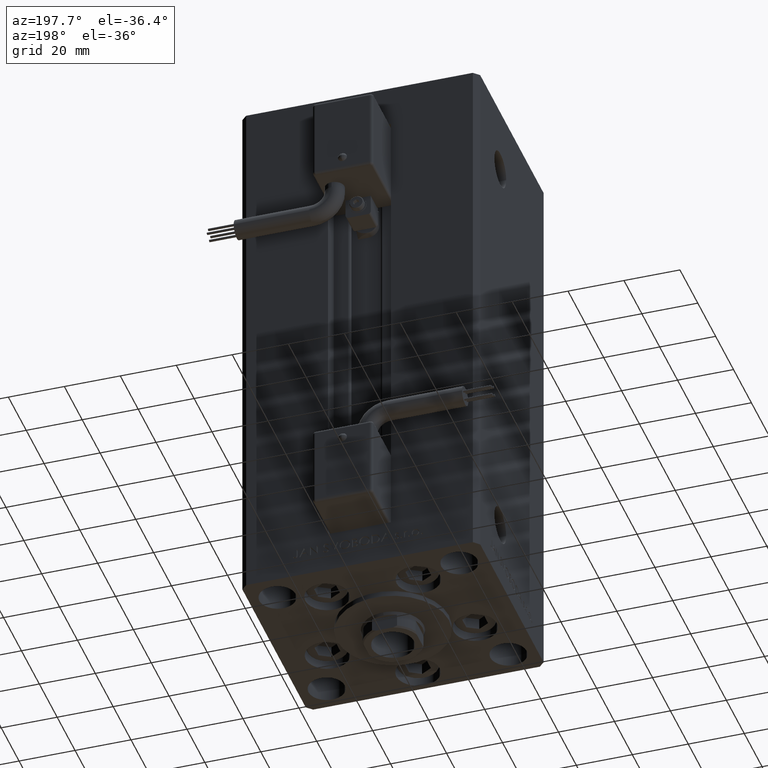
[diagram: clean part render]
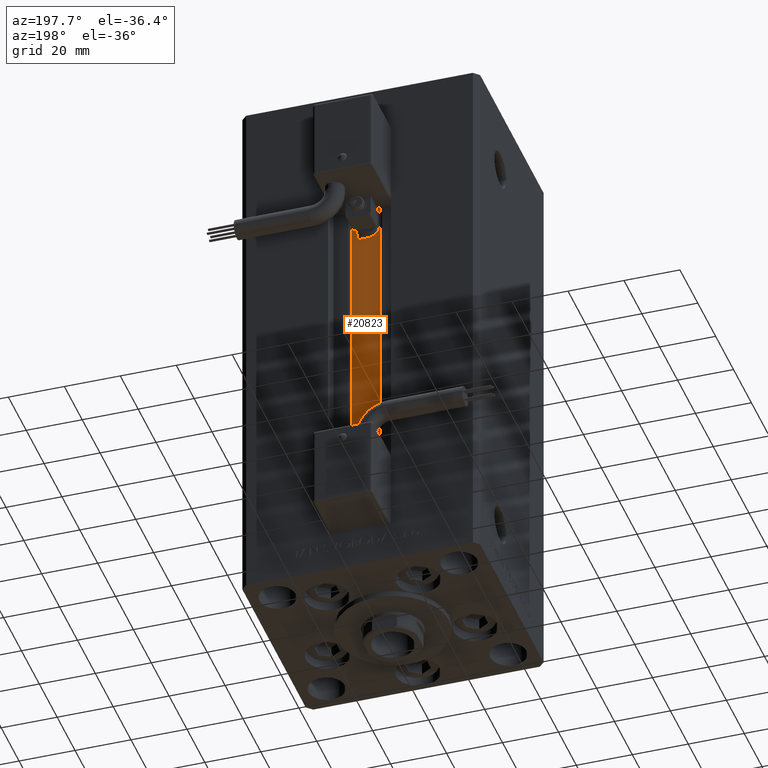
[diagram: same view with one face highlighted and labeled with its STEP entity id]
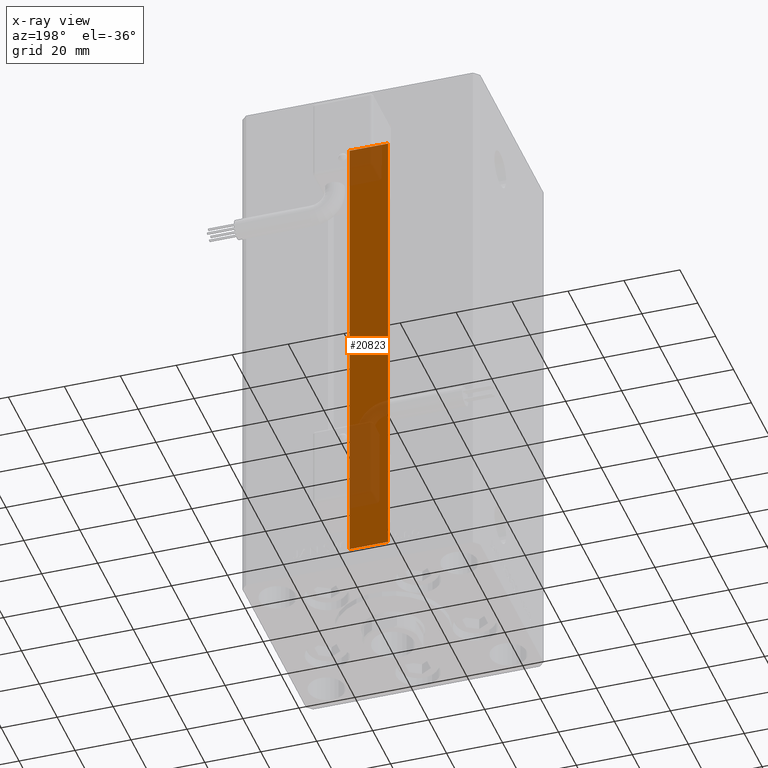
[diagram: x-ray of the same camera — body ghosted, the highlighted face saturated]
A machine part, auxiliary view. The second image highlights one B-rep face of the part: STEP entity #20823.
The next image is the same camera in x-ray: the body ghosted, the highlighted face saturated — about 26% of this face is hidden behind the body in this view.
In plain terms, the highlighted planar face has unit normal (0, -1, 0).
Its self-contained STEP definition (entity closure, byte-faithful):
#3551 = VECTOR ( 'NONE', #46634, 1000.000000000000000 ) ;
#8585 = DIRECTION ( 'NONE',  ( 0.000000000000000000, 0.000000000000000000, -1.000000000000000000 ) ) ;
#11779 = ORIENTED_EDGE ( 'NONE', *, *, #44839, .F. ) ;
#14032 = EDGE_CURVE ( 'NONE', #41092, #19626, #39230, .T. ) ;
#15175 = LINE ( 'NONE', #30369, #3551 ) ;
#16719 = VERTEX_POINT ( 'NONE', #20142 ) ;
#17232 = DIRECTION ( 'NONE',  ( -0.000000000000000000, -0.000000000000000000, 1.000000000000000000 ) ) ;
#17494 = LINE ( 'NONE', #46259, #36979 ) ;
#17769 = LINE ( 'NONE', #50263, #47337 ) ;
#18696 = CARTESIAN_POINT ( 'NONE',  ( -6.876153656360465938, 26.99999999999986855, 0.000000000000000000 ) ) ;
#19626 = VERTEX_POINT ( 'NONE', #42036 ) ;
#20142 = CARTESIAN_POINT ( 'NONE',  ( -6.876153656360465938, 26.99999999999986855, 168.5000000000000000 ) ) ;
#20823 = ADVANCED_FACE ( 'NONE', ( #25096 ), #32552, .F. ) ;
#23088 = EDGE_LOOP ( 'NONE', ( #11779, #33666, #29367, #38225 ) ) ;
#25096 = FACE_OUTER_BOUND ( 'NONE', #23088, .T. ) ;
#25427 = EDGE_CURVE ( 'NONE', #41092, #16719, #17769, .T. ) ;
#29367 = ORIENTED_EDGE ( 'NONE', *, *, #25427, .T. ) ;
#30267 = DIRECTION ( 'NONE',  ( -0.000000000000000000, -0.000000000000000000, 1.000000000000000000 ) ) ;
#30369 = CARTESIAN_POINT ( 'NONE',  ( 0.000000000000000000, 26.99999999999986855, 168.5000000000000000 ) ) ;
#30958 = CARTESIAN_POINT ( 'NONE',  ( 6.876153656360465938, 26.99999999999986855, 0.000000000000000000 ) ) ;
#31229 = DIRECTION ( 'NONE',  ( 1.000000000000000000, -0.000000000000000000, -0.000000000000000000 ) ) ;
#32552 = PLANE ( 'NONE',  #43885 ) ;
#33423 = VECTOR ( 'NONE', #31229, 1000.000000000000000 ) ;
#33666 = ORIENTED_EDGE ( 'NONE', *, *, #14032, .F. ) ;
#36307 = DIRECTION ( 'NONE',  ( 0.000000000000000000, -1.000000000000000000, -0.000000000000000000 ) ) ;
#36979 = VECTOR ( 'NONE', #17232, 1000.000000000000000 ) ;
#38225 = ORIENTED_EDGE ( 'NONE', *, *, #39780, .F. ) ;
#38233 = CARTESIAN_POINT ( 'NONE',  ( 6.876153656360465938, 26.99999999999986855, 168.5000000000000000 ) ) ;
#39230 = LINE ( 'NONE', #30958, #33423 ) ;
#39780 = EDGE_CURVE ( 'NONE', #51303, #16719, #15175, .T. ) ;
#41092 = VERTEX_POINT ( 'NONE', #18696 ) ;
#42036 = CARTESIAN_POINT ( 'NONE',  ( 6.876153656360465938, 26.99999999999986855, 0.000000000000000000 ) ) ;
#43885 = AXIS2_PLACEMENT_3D ( 'NONE', #45087, #36307, #8585 ) ;
#44839 = EDGE_CURVE ( 'NONE', #19626, #51303, #17494, .T. ) ;
#45087 = CARTESIAN_POINT ( 'NONE',  ( 6.876153656360465938, 26.99999999999986855, 0.000000000000000000 ) ) ;
#46259 = CARTESIAN_POINT ( 'NONE',  ( 6.876153656360465938, 26.99999999999986855, 0.000000000000000000 ) ) ;
#46634 = DIRECTION ( 'NONE',  ( -1.000000000000000000, 0.000000000000000000, 0.000000000000000000 ) ) ;
#47337 = VECTOR ( 'NONE', #30267, 1000.000000000000000 ) ;
#50263 = CARTESIAN_POINT ( 'NONE',  ( -6.876153656360465938, 26.99999999999986855, 0.000000000000000000 ) ) ;
#51303 = VERTEX_POINT ( 'NONE', #38233 ) ;